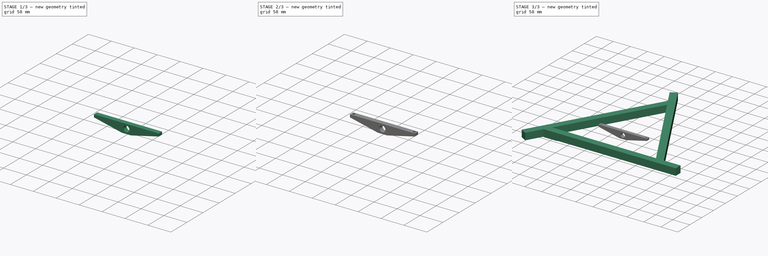
[diagram: build sequence overview — one tinted view per stage of 3, left to right]
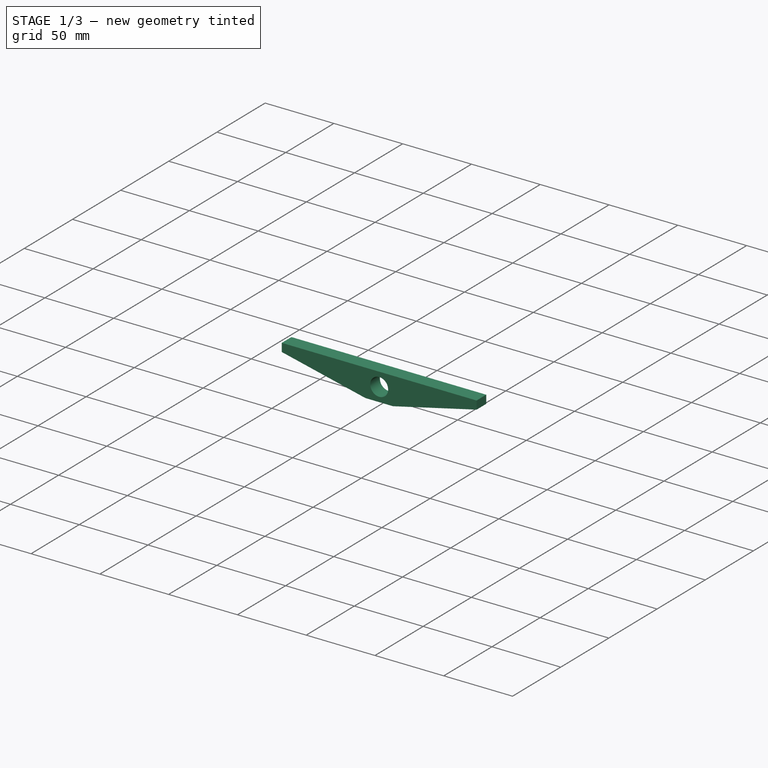
[diagram: stage 1 of 3 — iso view after this stage's code; geometry added in this stage tinted green]
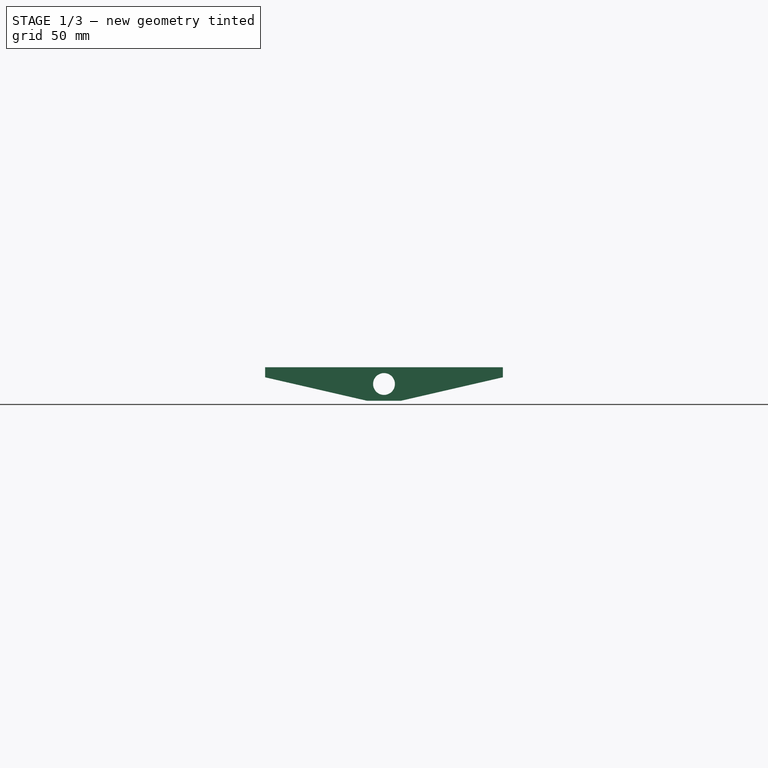
[diagram: stage 1 of 3 — front view after this stage's code; geometry added in this stage tinted green]
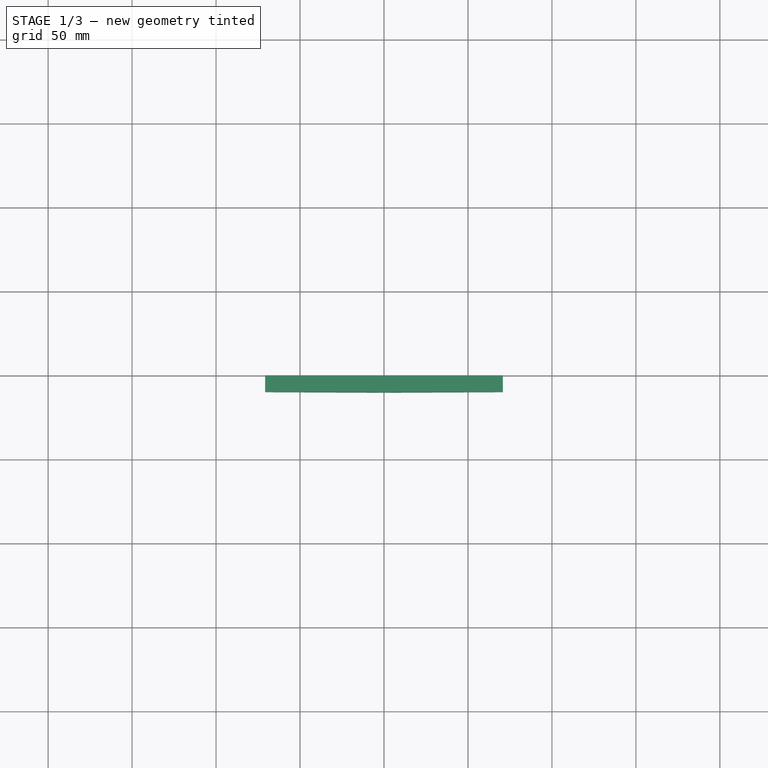
[diagram: stage 1 of 3 — top view after this stage's code; geometry added in this stage tinted green]
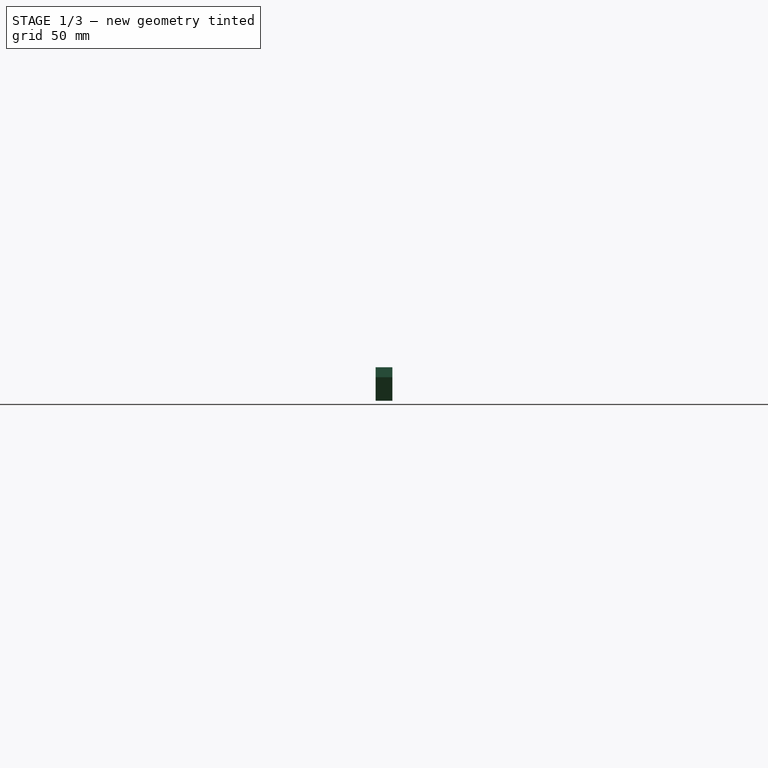
[diagram: stage 1 of 3 — right view after this stage's code; geometry added in this stage tinted green]
FCSTD DOCUMENT  (FreeCAD 1.0R39285 (Git))
Label: mirror_cell
License: All rights reserved
LicenseURL: http://en.wikipedia.org/wiki/All_rights_reserved
objects: Sketcher::SketchObject×4, Part::Extrusion×3, PartDesign::FeatureBase×1, PartDesign::Pocket×1, PartDesign::Body×1
note: 17 computed .brp shape members not serialized (recipe doc carries the construction recipe); baked Part::Feature solids carry a one-line shape summary decoded from their .brp

FEATURE [Part::Extrusion] Extrude002  label="rocker_extrude"
  Base = -> Sketch002
  Dir = (0,-1,2e-16)
  DirMode = 2
  FaceMakerClass = Part::FaceMakerBullseye
  FaceMakerMode = 3
  LengthFwd = 10
  LengthRev = 0
  Solid = true
  Symmetric = false
FEATURE [Sketcher::SketchObject] Sketch003  label="rocker_holes"
  ArcFitTolerance = 1e-06
  AttachmentSupport = -> [Extrude002]
  ExternalGeometry = -> [Sketch002]
  FullyConstrained = true
  MakeInternals = false
  MapMode = 5
  Placement = pos=(0,4.4e-15,20) rot=(0,0,1;0rad)
  sketch-geometry (3):
    g0: Circle CenterX=-65.805 CenterY=-5 CenterZ=0 NormalX=0 NormalY=0 NormalZ=1 AngleXU=0 Radius=2.5
    g1: Circle CenterX=65.805 CenterY=-5 CenterZ=0 NormalX=0 NormalY=0 NormalZ=1 AngleXU=0 Radius=2.5
    g2: LineSegment [constr] StartX=-65.805 StartY=-5 StartZ=0 EndX=65.805 EndY=-5 EndZ=0
  constraints (7):
    c: Equal(g0,g1)
    c: Diameter(g0) = 5
    c: Coincident(g2,g0)
    c: Coincident(g2,g1)
    c: Distance(g1,g-3) = 5
    c: Symmetric(g1,g0,g-2)
    c: Distance(g2) = 131.61
FEATURE [PartDesign::FeatureBase] BaseFeature
  BaseFeature = -> Extrude002
  Suppressed = false
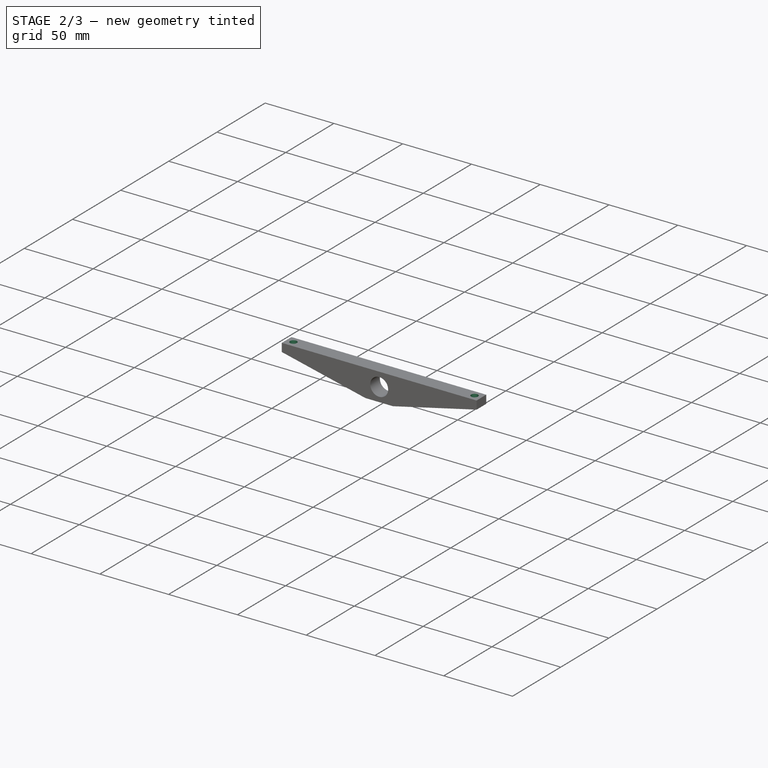
[diagram: stage 2 of 3 — iso view after this stage's code; geometry added in this stage tinted green]
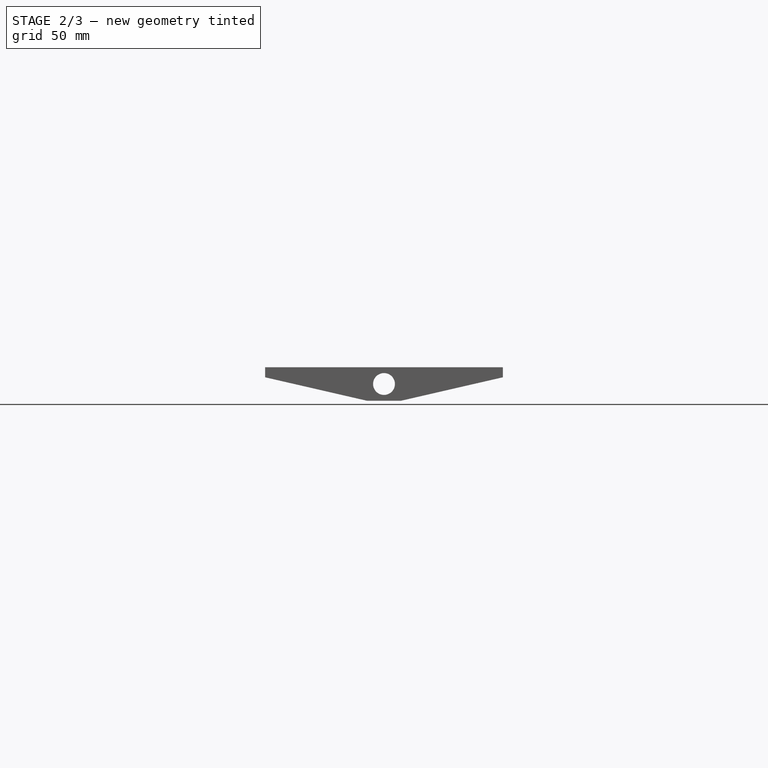
[diagram: stage 2 of 3 — front view after this stage's code; geometry added in this stage tinted green]
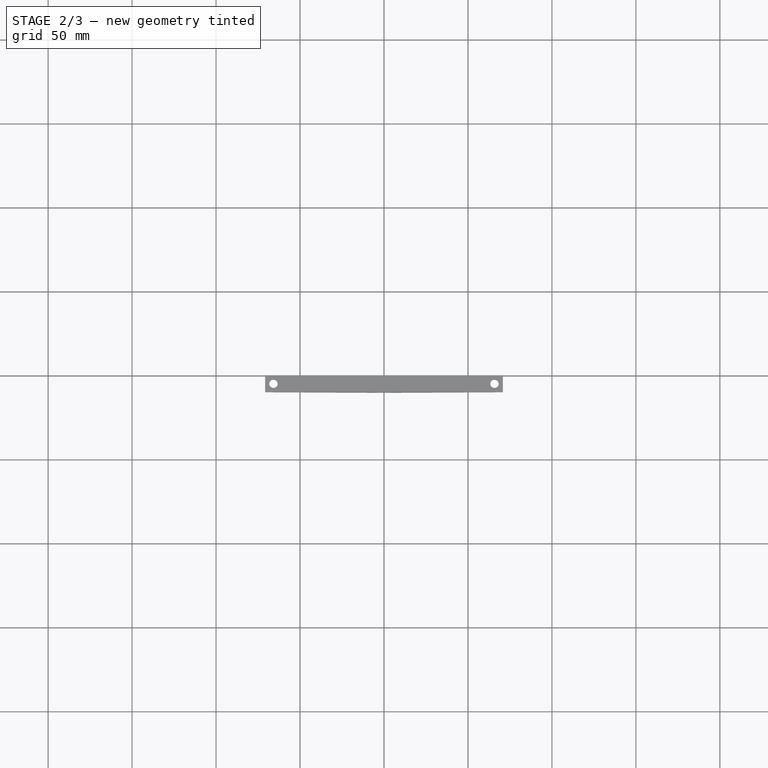
[diagram: stage 2 of 3 — top view after this stage's code; geometry added in this stage tinted green]
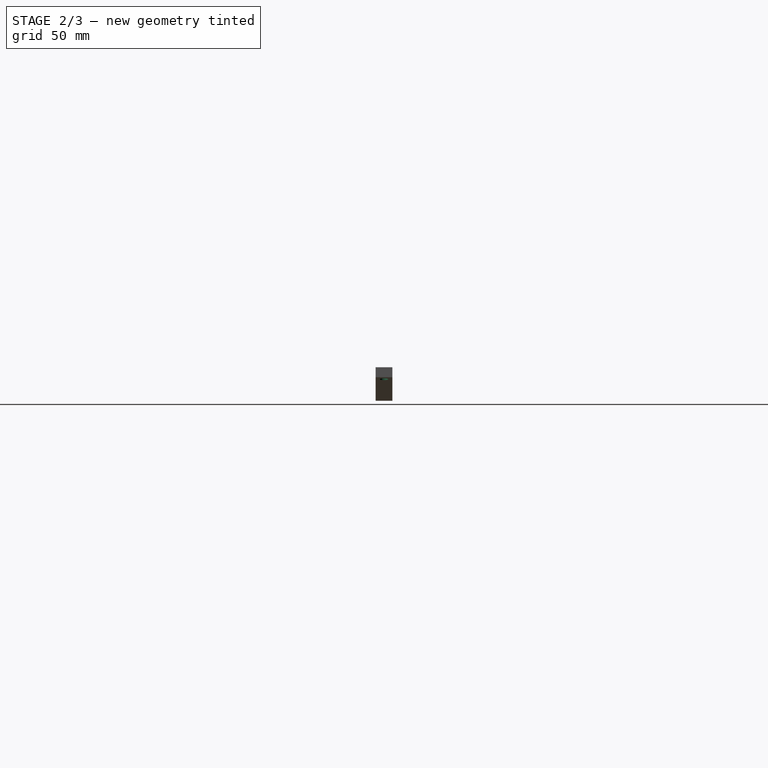
[diagram: stage 2 of 3 — right view after this stage's code; geometry added in this stage tinted green]
FEATURE [PartDesign::Pocket] Pocket  label="rocker_part"
  BaseFeature = -> BaseFeature
  Direction = (0,0,-1)
  Length = 12
  Length2 = 5
  Profile = -> Sketch003
  ReferenceAxis = -> Sketch003 [N_Axis]
  Suppressed = false
  Type = 1
FEATURE [PartDesign::Body] Body
  AllowCompound = false
  BaseFeature = -> Extrude002
  Group = -> [BaseFeature,Sketch003,Pocket]
  Origin = -> Origin
  Placement = pos=(0,-109,0) rot=(0,0,1;0rad)
  Tip = -> Pocket
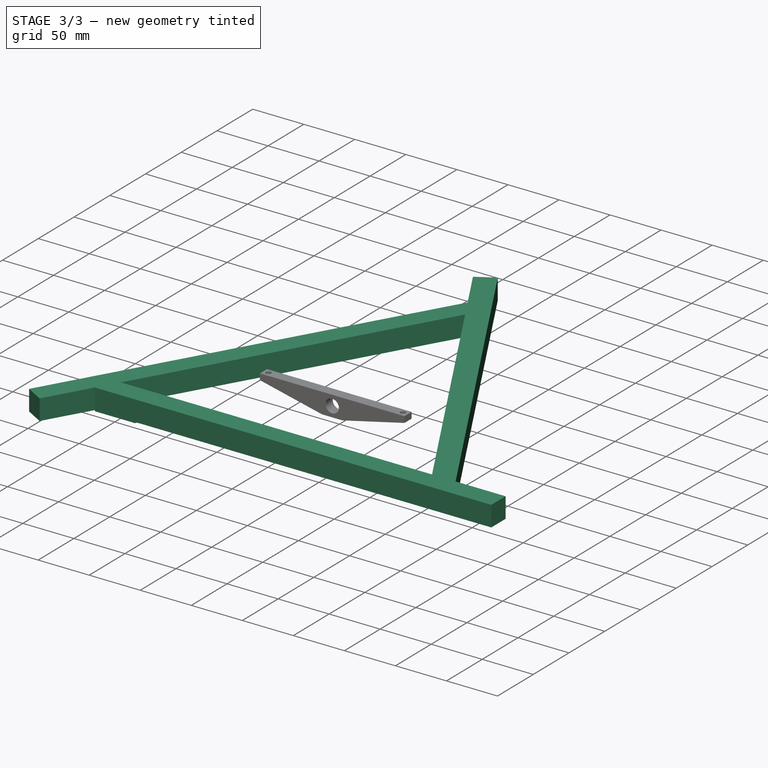
[diagram: stage 3 of 3 — iso view after this stage's code; geometry added in this stage tinted green]
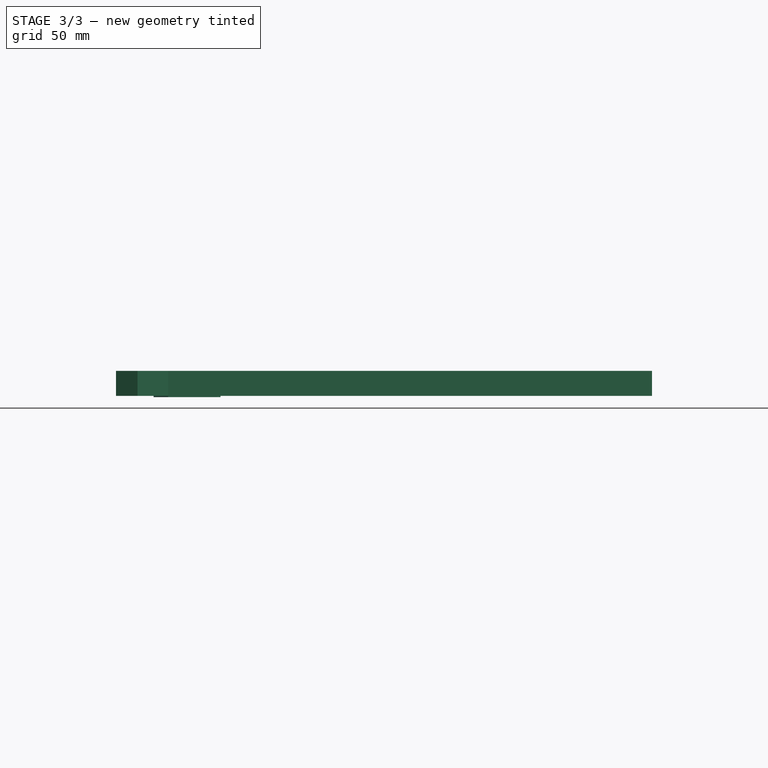
[diagram: stage 3 of 3 — front view after this stage's code; geometry added in this stage tinted green]
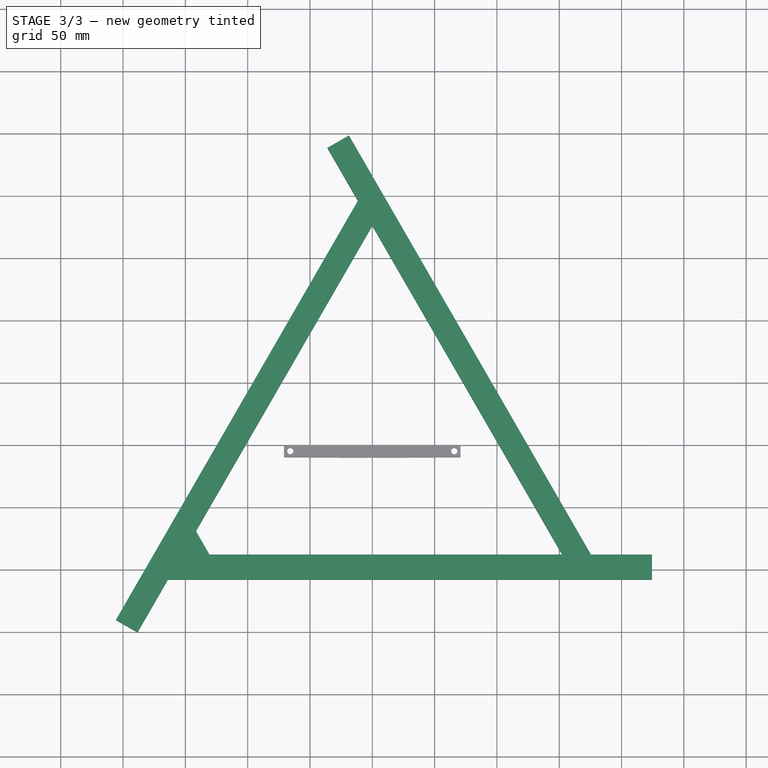
[diagram: stage 3 of 3 — top view after this stage's code; geometry added in this stage tinted green]
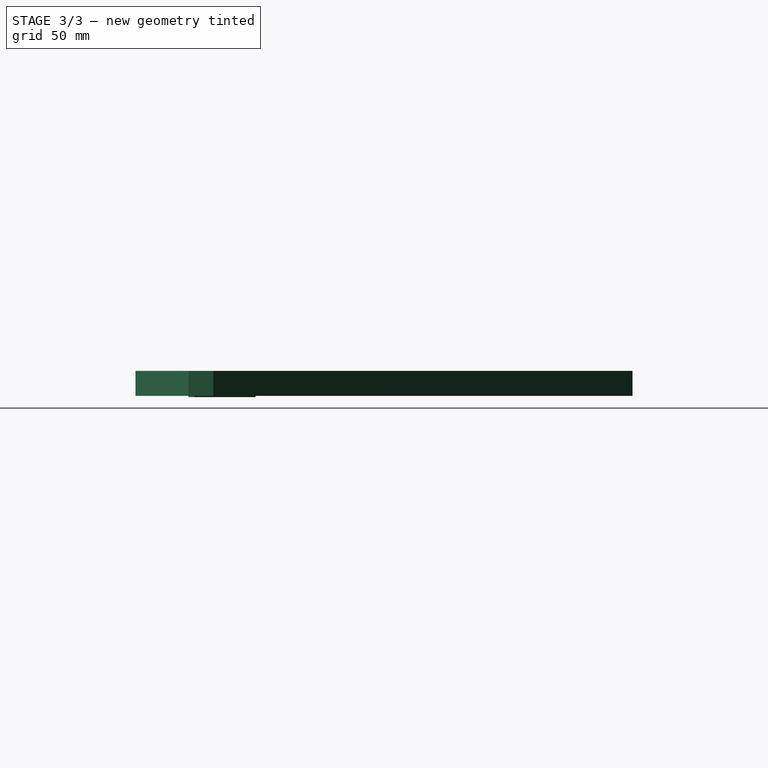
[diagram: stage 3 of 3 — right view after this stage's code; geometry added in this stage tinted green]
FEATURE [Sketcher::SketchObject] Sketch  label="frame"
  ArcFitTolerance = 1e-06
  FullyConstrained = false
  MakeInternals = false
  expr: Constraints[4] = Constraints[1] * 0.402274
  expr: Constraints[5] = Constraints[1] * 0.813677
  sketch-geometry (29):
    g0: Circle [constr] CenterX=0 CenterY=0 CenterZ=0 NormalX=0 NormalY=0 NormalZ=1 AngleXU=0 Radius=200
    g1: Circle [constr] CenterX=0 CenterY=0 CenterZ=0 NormalX=0 NormalY=0 NormalZ=1 AngleXU=0 Radius=162.735
    g2: Circle [constr] CenterX=0 CenterY=0 CenterZ=0 NormalX=0 NormalY=0 NormalZ=1 AngleXU=0 Radius=80.4548
    g3: Circle [constr] CenterX=0 CenterY=0 CenterZ=0 NormalX=0 NormalY=0 NormalZ=1 AngleXU=0 Radius=113.979
    g4: Circle [constr] CenterX=0 CenterY=0 CenterZ=0 NormalX=0 NormalY=0 NormalZ=1 AngleXU=0 Radius=131.612
    g5: LineSegment [constr] StartX=65.8066 StartY=-113.979 StartZ=0 EndX=-65.8066 EndY=-113.979 EndZ=0
    g6: Circle [constr] CenterX=0 CenterY=0 CenterZ=0 NormalX=0 NormalY=0 NormalZ=1 AngleXU=0 Radius=241
    g7: LineSegment StartX=-152.326 StartY=-87.979 StartZ=0 EndX=224.483 EndY=-87.979 EndZ=0
    g8: Circle [constr] CenterX=0 CenterY=0 CenterZ=0 NormalX=0 NormalY=0 NormalZ=1 AngleXU=0 Radius=87.979
    g9: LineSegment StartX=-36.0493 StartY=238.397 StartZ=0 EndX=152.355 EndY=-87.929 EndZ=0
    g10: LineSegment StartX=0.0288675 StartY=176.008 StartZ=0 EndX=-188.376 EndY=-150.318 EndZ=0
    g11: LineSegment StartX=-163.873 StartY=-107.979 StartZ=0 EndX=224.483 EndY=-107.979 EndZ=0
    g12: LineSegment StartX=175.449 StartY=-87.929 StartZ=0 EndX=-18.7288 EndY=248.397 EndZ=0
    g13: LineSegment StartX=-11.5181 StartY=196.008 StartZ=0 EndX=-205.696 EndY=-140.318 EndZ=0
    g14: LineSegment StartX=224.483 StartY=-87.979 StartZ=0 EndX=224.483 EndY=-107.979 EndZ=0
    g15: LineSegment StartX=-188.376 StartY=-150.318 StartZ=0 EndX=-205.696 EndY=-140.318 EndZ=0
    g16: LineSegment StartX=-36.0493 StartY=238.397 StartZ=0 EndX=-18.7288 EndY=248.397 EndZ=0
    g17: LineSegment [constr] StartX=42.1197 StartY=-157.19 StartZ=0 EndX=115.072 EndY=-115.071 EndZ=0
    g18: LineSegment [constr] StartX=115.072 StartY=-115.071 StartZ=0 EndX=40.228 EndY=-69.6756 EndZ=0
    g19: LineSegment [constr] StartX=40.228 StartY=-69.6756 StartZ=0 EndX=42.1197 EndY=-157.19 EndZ=0
    g20: LineSegment [constr] StartX=40.228 StartY=-69.6756 StartZ=0 EndX=78.5958 EndY=-136.13 EndZ=0
    g21: LineSegment [constr] StartX=42.1197 StartY=-157.19 StartZ=0 EndX=77.6499 EndY=-92.3732 EndZ=0
    g22: LineSegment [constr] StartX=115.072 StartY=-115.071 StartZ=0 EndX=41.1738 EndY=-113.433 EndZ=0
    g23: LineSegment [constr] StartX=0 StartY=0 StartZ=0 EndX=-140.891 EndY=-140.891 EndZ=0
    g24: LineSegment [constr] StartX=0 StartY=0 StartZ=0 EndX=140.891 EndY=-140.891 EndZ=0
    g25: LineSegment [constr] StartX=-140.891 StartY=-140.891 StartZ=0 EndX=140.891 EndY=-140.891 EndZ=0
    g26: LineSegment StartX=-163.873 StartY=-107.979 StartZ=0 EndX=-152.326 EndY=-87.979 EndZ=0
    g27: LineSegment StartX=-11.5181 StartY=196.008 StartZ=0 EndX=0.0288675 EndY=176.008 EndZ=0
    g28: LineSegment StartX=152.355 StartY=-87.929 StartZ=0 EndX=175.449 EndY=-87.929 EndZ=0
  constraints (76):
    c: Coincident(g0,g-1)
    c: Radius(g0) = 200
    c: Coincident(g1,g0)
    c: Coincident(g2,g0)
    c: Radius(g2) = 80.4548
    c: Radius(g1) = 162.735
    c: Coincident(g3,g0)
    c: Coincident(g4,g0)
    c: Radius(g3) = 113.979
    c: Radius(g4) = 131.612
    c: PointOnObject(g5,g4)
    c: PointOnObject(g5,g4)
    c: Tangent(g5,g3)
    c: Parallel(g-1,g5)
    c: Coincident(g6,g0)
    c: Radius(g6) = 241
    c: Parallel(g7,g5)
    c: Coincident(g8,g0)
    c: Tangent(g8,g7)
    c: Tangent(g9,g8)
    c: Tangent(g10,g8)
    c: Equal(g10,g7)
    c: Equal(g7,g9)
    c: Horizontal(g11)
    c: Coincident(g14,g7)
    c: Coincident(g14,g11)
    c: Coincident(g15,g10)
    c: Coincident(g15,g13)
    c: Coincident(g16,g9)
    c: Coincident(g16,g12)
    c: Equal(g13,g11)
    c: Equal(g11,g12)
    c: Equal(g16,g15)
    c: Equal(g15,g14)
    c: Perpendicular(g13,g15)
    c: Parallel(g10,g13)
    c: Parallel(g12,g9)
    c: Angle(g7,g10) = 1.0472
    c: Distance(g15) = 20
    c: Distance(g5,g11) = 6
    c: Angle(g9,g7) = 1.0472
    c: PointOnObject(g17,g1)
    c: PointOnObject(g17,g1)
    c: Coincident(g18,g17)
    c: PointOnObject(g18,g2)
    c: Coincident(g19,g18)
    c: Coincident(g19,g17)
    c: Distance(g17) = 84.238
    c: Distance(g19) = 87.535
    c: Coincident(g20,g18)
    c: Symmetric(g17,g17,g20)
    c: Coincident(g21,g17)
    c: Symmetric(g18,g18,g21)
    c: Coincident(g22,g17)
    c: Symmetric(g19,g19,g22)
    c: PointOnObject(g5,g20)
    c: Coincident(g23,g0)
    c: Coincident(g24,g0)
    c: Coincident(g25,g24)
    c: Coincident(g25,g23)
    c: Equal(g23,g24)
    c: Angle(g23,g24) = 1.5708
    c: Parallel(g25,g-1)
    c: Coincident(g26,g11)
    c: Coincident(g26,g7)
    c: Parallel(g26,g10)
    c: Coincident(g27,g13)
    c: Coincident(g27,g10)
    c: Parallel(g27,g9)
    c: Distance(g10,g9) = 0.05
    c: Coincident(g28,g9)
    c: Coincident(g28,g12)
    c: Horizontal(g28)
    c: Distance(g9,g7) = 0.05
    c: Distance(g7,g10) = 0.05
    c: PointOnObject(g10,g6)
FEATURE [Sketcher::SketchObject] Sketch001  label="brace"
  ArcFitTolerance = 1e-06
  ExternalGeometry = -> [Sketch]
  FullyConstrained = true
  MakeInternals = false
  sketch-geometry (31):
    g0: LineSegment StartX=-124.647 StartY=-107.979 StartZ=0 EndX=-163.873 EndY=-107.979 EndZ=0
    g1: LineSegment StartX=-163.873 StartY=-107.979 StartZ=0 EndX=-175.449 EndY=-87.929 EndZ=0
    g2: LineSegment StartX=-175.449 StartY=-87.929 StartZ=0 EndX=-155.836 EndY=-53.9579 EndZ=0
    g3: LineSegment [constr] StartX=-126.668 StartY=-103.479 StartZ=0 EndX=-156.137 EndY=-103.479 EndZ=0
    g4: LineSegment [constr] StartX=-156.137 StartY=-103.479 StartZ=0 EndX=-149.786 EndY=-92.479 EndZ=0
    g5: LineSegment [constr] StartX=-149.786 StartY=-92.479 StartZ=0 EndX=-133.018 EndY=-92.479 EndZ=0
    g6: LineSegment [constr] StartX=-133.018 StartY=-92.479 StartZ=0 EndX=-126.668 EndY=-103.479 EndZ=0
    g7: LineSegment [constr] StartX=-170.253 StartY=-87.929 StartZ=0 EndX=-152.949 EndY=-57.9579 EndZ=0
    g8: LineSegment [constr] StartX=-152.949 StartY=-57.9579 StartZ=0 EndX=-146.598 EndY=-68.9579 EndZ=0
    g9: LineSegment [constr] StartX=-146.598 StartY=-68.9579 StartZ=0 EndX=-163.902 EndY=-98.929 EndZ=0
    g10: LineSegment [constr] StartX=-163.902 StartY=-98.929 StartZ=0 EndX=-170.253 EndY=-87.929 EndZ=0
    g11: Circle CenterX=-163.902 CenterY=-98.929 CenterZ=0 NormalX=0 NormalY=0 NormalZ=1 AngleXU=0 Radius=1.6
    g12: Circle CenterX=-170.253 CenterY=-87.929 CenterZ=0 NormalX=0 NormalY=0 NormalZ=1 AngleXU=0 Radius=1.6
    g13: Circle CenterX=-152.949 CenterY=-57.9579 CenterZ=0 NormalX=0 NormalY=0 NormalZ=1 AngleXU=0 Radius=1.6
    g14: Circle CenterX=-146.598 CenterY=-68.9579 CenterZ=0 NormalX=0 NormalY=0 NormalZ=1 AngleXU=0 Radius=1.6
    g15: Circle CenterX=-156.137 CenterY=-103.479 CenterZ=0 NormalX=0 NormalY=0 NormalZ=1 AngleXU=0 Radius=1.6
    g16: Circle CenterX=-149.786 CenterY=-92.479 CenterZ=0 NormalX=0 NormalY=0 NormalZ=1 AngleXU=0 Radius=1.6
    g17: Circle CenterX=-133.018 CenterY=-92.479 CenterZ=0 NormalX=0 NormalY=0 NormalZ=1 AngleXU=0 Radius=1.6
    g18: Circle CenterX=-126.668 CenterY=-103.479 CenterZ=0 NormalX=0 NormalY=0 NormalZ=1 AngleXU=0 Radius=1.6
    g19: Circle [constr] CenterX=-170.253 CenterY=-87.929 CenterZ=0 NormalX=0 NormalY=0 NormalZ=1 AngleXU=0 Radius=3
    g20: Circle [constr] CenterX=-163.902 CenterY=-98.929 CenterZ=0 NormalX=0 NormalY=0 NormalZ=1 AngleXU=0 Radius=3
    g21: Circle [constr] CenterX=-152.949 CenterY=-57.9579 CenterZ=0 NormalX=0 NormalY=0 NormalZ=1 AngleXU=0 Radius=3
    g22: Circle [constr] CenterX=-146.598 CenterY=-68.9579 CenterZ=0 NormalX=0 NormalY=0 NormalZ=1 AngleXU=0 Radius=3
    g23: Circle [constr] CenterX=-156.137 CenterY=-103.479 CenterZ=0 NormalX=0 NormalY=0 NormalZ=1 AngleXU=0 Radius=3
    g24: Circle [constr] CenterX=-149.786 CenterY=-92.479 CenterZ=0 NormalX=0 NormalY=0 NormalZ=1 AngleXU=0 Radius=3
    g25: Circle [constr] CenterX=-133.018 CenterY=-92.479 CenterZ=0 NormalX=0 NormalY=0 NormalZ=1 AngleXU=0 Radius=3
    g26: Circle [constr] CenterX=-126.668 CenterY=-103.479 CenterZ=0 NormalX=0 NormalY=0 NormalZ=1 AngleXU=0 Radius=3
    g27: LineSegment StartX=-155.836 StartY=-53.9579 StartZ=0 EndX=-150.062 EndY=-53.9579 EndZ=0
    g28: LineSegment StartX=-124.647 StartY=-107.979 StartZ=0 EndX=-121.76 EndY=-102.979 EndZ=0
    g29: LineSegment [constr] StartX=-152.949 StartY=-48.9579 StartZ=0 EndX=-118.873 EndY=-107.979 EndZ=0
    g30: LineSegment StartX=-150.062 StartY=-53.9579 StartZ=0 EndX=-121.76 EndY=-102.979 EndZ=0
  constraints (77):
    c: Coincident(g0,g-5)
    c: Coincident(g0,g1)
    c: PointOnObject(g1,g-3)
    c: Coincident(g1,g2)
    c: Coincident(g3,g4)
    c: Coincident(g4,g5)
    c: Coincident(g5,g6)
    c: Coincident(g6,g3)
    c: Parallel(g5,g3)
    c: Parallel(g3,g-6)
    c: Distance(g5,g-6) = 4.5
    c: Distance(g3,g0) = 4.5
    c: Distance(g4,g-4) = 4.5
    c: Coincident(g7,g8)
    c: Coincident(g8,g9)
    c: Coincident(g9,g10)
    c: Coincident(g10,g7)
    c: Parallel(g10,g8)
    c: Parallel(g7,g9)
    c: Parallel(g9,g-4)
    c: Distance(g7,g2) = 4.5
    c: Distance(g8,g-4) = 4.5
    c: Distance(g7,g1) = 4.5
    c: Coincident(g11,g9)
    c: Coincident(g12,g7)
    c: Coincident(g13,g7)
    c: Coincident(g14,g8)
    c: Coincident(g15,g3)
    c: Coincident(g16,g4)
    c: Coincident(g17,g5)
    c: Coincident(g18,g3)
    c: Equal(g18,g17)
    c: Equal(g18,g15)
    c: Equal(g18,g16)
    c: Equal(g18,g11)
    c: Equal(g18,g12)
    c: Equal(g18,g14)
    c: Equal(g18,g13)
    c: Diameter(g18) = 3.2
    c: Coincident(g19,g7)
    c: Coincident(g20,g9)
    c: Coincident(g21,g7)
    c: Coincident(g23,g3)
    c: Coincident(g24,g4)
    c: Coincident(g25,g5)
    c: Coincident(g26,g3)
    c: Equal(g26,g25)
    c: Equal(g26,g23)
    c: Equal(g26,g24)
    c: Equal(g26,g20)
    c: Equal(g26,g19)
    c: Equal(g26,g22)
    c: Equal(g26,g21)
    c: Diameter(g26) = 6
    c: Parallel(g4,g-4)
    c: Coincident(g22,g8)
    c: Coincident(g0,g28)
    c: Coincident(g2,g27)
    c: PointOnObject(g2,g-3)
    c: PointOnObject(g0,g-5)
    c: PointOnObject(g29,g-3)
    c: Parallel(g29,g1)
    c: PointOnObject(g27,g29)
    c: Distance(g1,g29) = 45
    c: Equal(g2,g0)
    c: Parallel(g27,g0)
    c: Parallel(g28,g2)
    c: Equal(g27,g28)
    c: Coincident(g30,g27)
    c: Coincident(g30,g28)
    c: PointOnObject(g29,g-5)
    c: Parallel(g1,g-7)
    c: Distance(g7,g30) = 4.5
    c: Parallel(g10,g1)
    c: Parallel(g6,g8)
    c: PointOnObject(g5,g8)
    c: Distance(g7,g27) = 4
FEATURE [Part::Extrusion] Extrude  label="frame_extrude"
  AttacherType = Attacher::AttachEngine3D
  Base = -> Sketch
  Dir = (0,0,1)
  DirMode = 2
  FaceMakerClass = Part::FaceMakerBullseye
  FaceMakerMode = 3
  LengthFwd = 20
  LengthRev = 0
  Solid = true
  Symmetric = false
FEATURE [Sketcher::SketchObject] Sketch002  label="rocker"
  ArcFitTolerance = 1e-06
  AttachmentSupport = -> [Extrude]
  FullyConstrained = true
  MakeInternals = false
  Placement = pos=(0,0,0) rot=(1,0,0;1.5708rad)
  sketch-geometry (8):
    g0: Circle CenterX=0 CenterY=10 CenterZ=0 NormalX=0 NormalY=0 NormalZ=1 AngleXU=0 Radius=6.5
    g1: LineSegment StartX=-70.805 StartY=20 StartZ=0 EndX=70.805 EndY=20 EndZ=0
    g2: LineSegment StartX=70.805 StartY=20 StartZ=0 EndX=70.805 EndY=14 EndZ=0
    g3: LineSegment StartX=70.805 StartY=14 StartZ=0 EndX=10 EndY=-8e-16 EndZ=0
    g4: LineSegment StartX=10 StartY=-8e-16 StartZ=0 EndX=-10 EndY=0 EndZ=0
    g5: LineSegment StartX=-10 StartY=0 StartZ=0 EndX=-70.805 EndY=14 EndZ=0
    g6: LineSegment StartX=-70.805 StartY=14 StartZ=0 EndX=-70.805 EndY=20 EndZ=0
    g7: Circle [constr] CenterX=0 CenterY=10 CenterZ=0 NormalX=0 NormalY=0 NormalZ=1 AngleXU=0 Radius=10
  constraints (22):
    c: Diameter(g0) = 13
    c: Coincident(g1,g2)
    c: Coincident(g2,g3)
    c: PointOnObject(g3,g-1)
    c: Coincident(g3,g4)
    c: PointOnObject(g4,g-1)
    c: Coincident(g4,g5)
    c: Coincident(g5,g6)
    c: Vertical(g6)
    c: Coincident(g1,g6)
    c: Equal(g6,g2)
    c: Equal(g5,g3)
    c: Parallel(g2,g6)
    c: Symmetric(g1,g1,g-2)
    c: PointOnObject(g0,g-2)
    c: Distance(g4) = 20
    c: Distance(g1) = 141.61
    c: Distance(g6) = 6
    c: Coincident(g7,g0)
    c: Tangent(g7,g4)
    c: Tangent(g7,g1)
    c: Diameter(g7) = 20
FEATURE [Part::Extrusion] Extrude001  label="brace_extrude"
  Base = -> Sketch001
  Dir = (0,0,1)
  DirMode = 2
  FaceMakerClass = Part::FaceMakerBullseye
  FaceMakerMode = 3
  LengthFwd = 1
  LengthRev = 0
  Placement = pos=(0,0,-1) rot=(0,0,1;0rad)
  Solid = true
  Symmetric = false
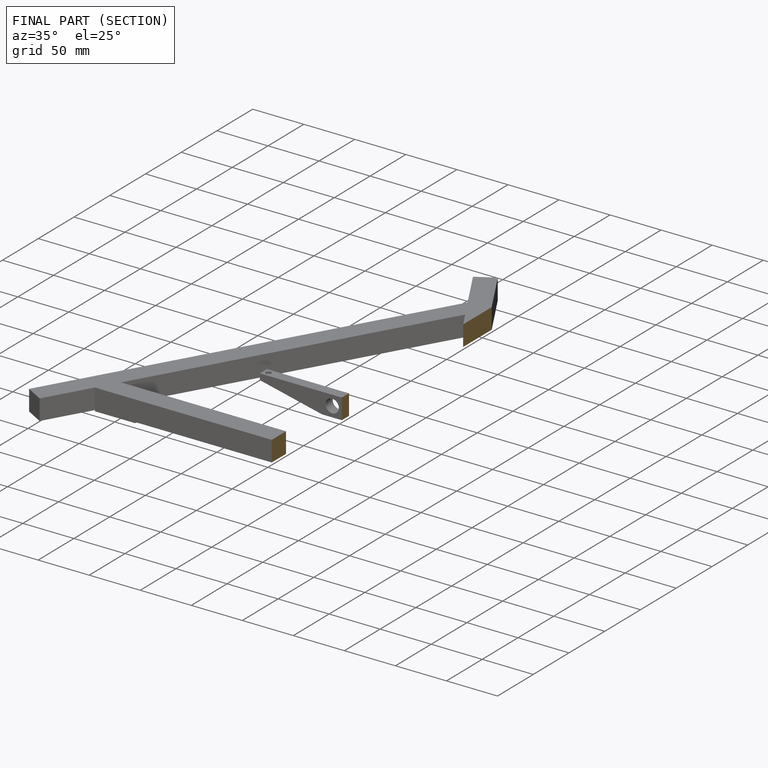
[diagram: finished part — half-section view (interior)]
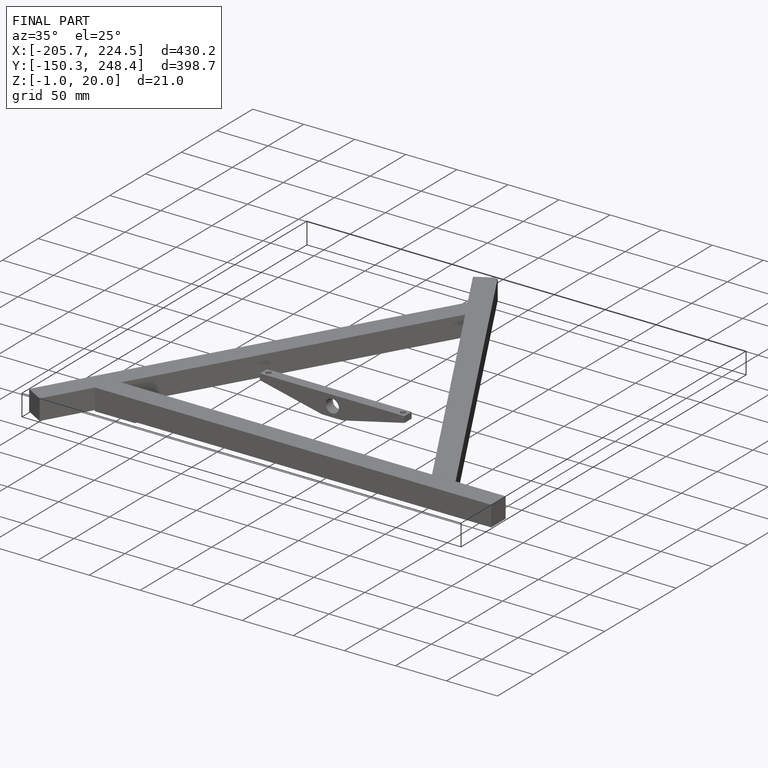
[diagram: finished part — iso view with bounding-box wireframe]
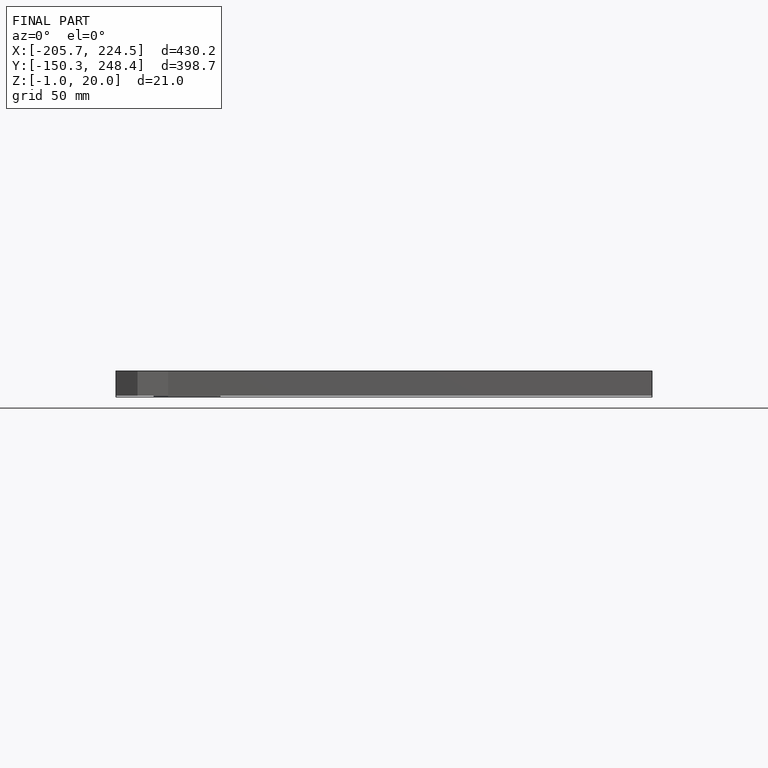
[diagram: finished part — front view with bounding-box wireframe]
